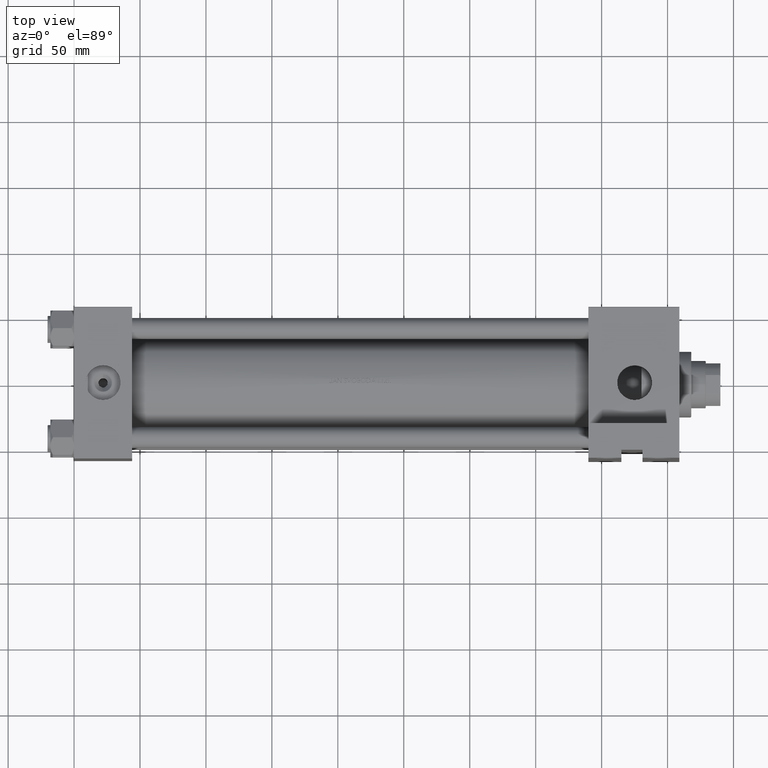
[diagram: clean part render]
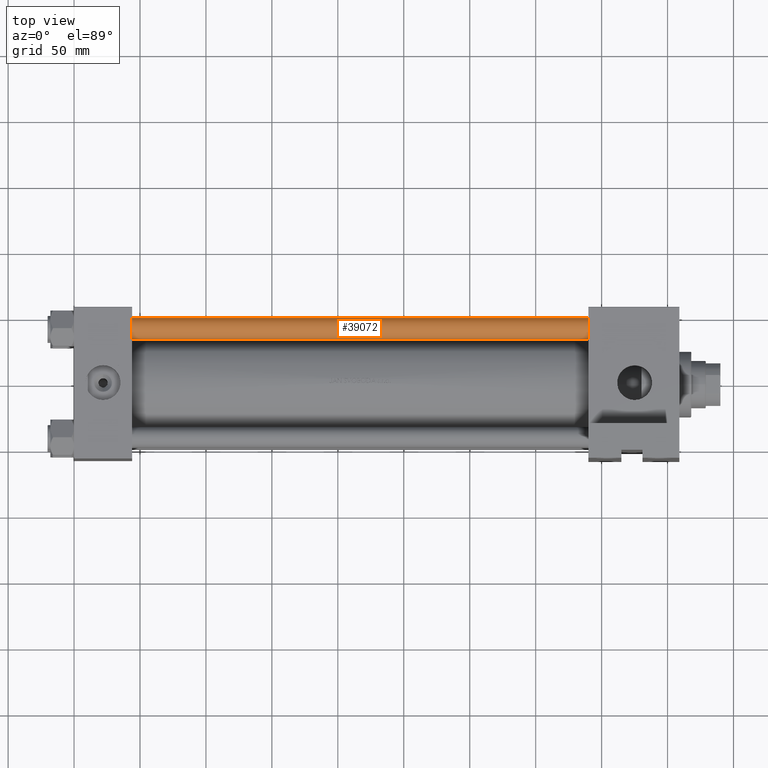
[diagram: same view with one face highlighted and labeled with its STEP entity id]
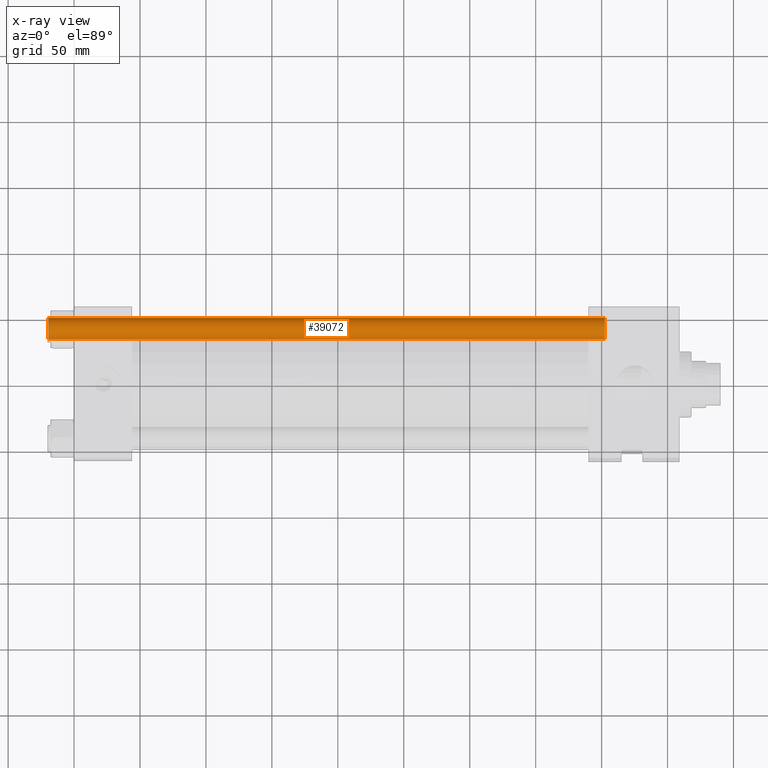
[diagram: x-ray of the same camera — body ghosted, the highlighted face saturated]
A machine part, top view. The second image highlights one B-rep face of the part: STEP entity #39072.
The next image is the same camera in x-ray: the body ghosted, the highlighted face saturated — about 0% of this face is hidden behind the body in this view.
In plain terms, the highlighted cylindrical surface (edge-blend (fillet) strip) has radius 8 mm, axis along (1, -0, 0).
Its self-contained STEP definition (entity closure, byte-faithful):
#833 = CYLINDRICAL_SURFACE ( 'NONE', #39479, 8.000000000000000000 ) ;
#3375 = LINE ( 'NONE', #8006, #29261 ) ;
#4550 = CIRCLE ( 'NONE', #45741, 8.000000000000000000 ) ;
#4801 = CARTESIAN_POINT ( 'NONE',  ( 0.000000000000000000, 0.000000000000000000, 422.5000000000002842 ) ) ;
#5711 = ORIENTED_EDGE ( 'NONE', *, *, #30482, .F. ) ;
#8006 = CARTESIAN_POINT ( 'NONE',  ( -8.000000000000000000, 0.000000000000000000, 423.0000000000000000 ) ) ;
#8309 = DIRECTION ( 'NONE',  ( -0.000000000000000000, -0.000000000000000000, -1.000000000000000000 ) ) ;
#12687 = CARTESIAN_POINT ( 'NONE',  ( 0.000000000000000000, 0.000000000000000000, 0.5000000000003890221 ) ) ;
#13670 = CARTESIAN_POINT ( 'NONE',  ( 8.000000000000000000, 9.797174393178823685E-16, 422.5000000000002842 ) ) ;
#15522 = DIRECTION ( 'NONE',  ( 0.000000000000000000, 0.000000000000000000, -1.000000000000000000 ) ) ;
#18704 = DIRECTION ( 'NONE',  ( -0.000000000000000000, -0.000000000000000000, -1.000000000000000000 ) ) ;
#19505 = EDGE_CURVE ( 'NONE', #34573, #47997, #3375, .T. ) ;
#19644 = DIRECTION ( 'NONE',  ( 1.000000000000000000, 0.000000000000000000, 0.000000000000000000 ) ) ;
#20831 = AXIS2_PLACEMENT_3D ( 'NONE', #4801, #15522, #19644 ) ;
#22310 = FACE_OUTER_BOUND ( 'NONE', #47254, .T. ) ;
#24840 = VECTOR ( 'NONE', #8309, 1000.000000000000000 ) ;
#27373 = CARTESIAN_POINT ( 'NONE',  ( -8.000000000000000000, 0.000000000000000000, 0.5000000000003890221 ) ) ;
#27484 = EDGE_CURVE ( 'NONE', #34718, #34573, #41795, .T. ) ;
#27759 = DIRECTION ( 'NONE',  ( 1.000000000000000000, 0.000000000000000000, 0.000000000000000000 ) ) ;
#29261 = VECTOR ( 'NONE', #18704, 1000.000000000000000 ) ;
#30482 = EDGE_CURVE ( 'NONE', #34718, #33270, #45278, .T. ) ;
#30966 = ORIENTED_EDGE ( 'NONE', *, *, #27484, .T. ) ;
#33270 = VERTEX_POINT ( 'NONE', #36621 ) ;
#34573 = VERTEX_POINT ( 'NONE', #48003 ) ;
#34718 = VERTEX_POINT ( 'NONE', #13670 ) ;
#36330 = ORIENTED_EDGE ( 'NONE', *, *, #19505, .T. ) ;
#36621 = CARTESIAN_POINT ( 'NONE',  ( 8.000000000000000000, 9.797174393178823685E-16, 0.5000000000003890221 ) ) ;
#37156 = CARTESIAN_POINT ( 'NONE',  ( 0.000000000000000000, 0.000000000000000000, 423.0000000000000000 ) ) ;
#39072 = ADVANCED_FACE ( 'NONE', ( #22310 ), #833, .T. ) ;
#39479 = AXIS2_PLACEMENT_3D ( 'NONE', #37156, #47032, #39503 ) ;
#39503 = DIRECTION ( 'NONE',  ( -1.000000000000000000, 0.000000000000000000, 0.000000000000000000 ) ) ;
#41630 = CARTESIAN_POINT ( 'NONE',  ( 8.000000000000000000, 9.797174393178823685E-16, 423.0000000000000000 ) ) ;
#41795 = CIRCLE ( 'NONE', #20831, 8.000000000000000000 ) ;
#43221 = EDGE_CURVE ( 'NONE', #47997, #33270, #4550, .T. ) ;
#44406 = ORIENTED_EDGE ( 'NONE', *, *, #43221, .T. ) ;
#45278 = LINE ( 'NONE', #41630, #24840 ) ;
#45741 = AXIS2_PLACEMENT_3D ( 'NONE', #12687, #46249, #27759 ) ;
#46249 = DIRECTION ( 'NONE',  ( -0.000000000000000000, -0.000000000000000000, 1.000000000000000000 ) ) ;
#47032 = DIRECTION ( 'NONE',  ( -0.000000000000000000, -0.000000000000000000, -1.000000000000000000 ) ) ;
#47254 = EDGE_LOOP ( 'NONE', ( #5711, #30966, #36330, #44406 ) ) ;
#47997 = VERTEX_POINT ( 'NONE', #27373 ) ;
#48003 = CARTESIAN_POINT ( 'NONE',  ( -8.000000000000000000, 0.000000000000000000, 422.5000000000002842 ) ) ;